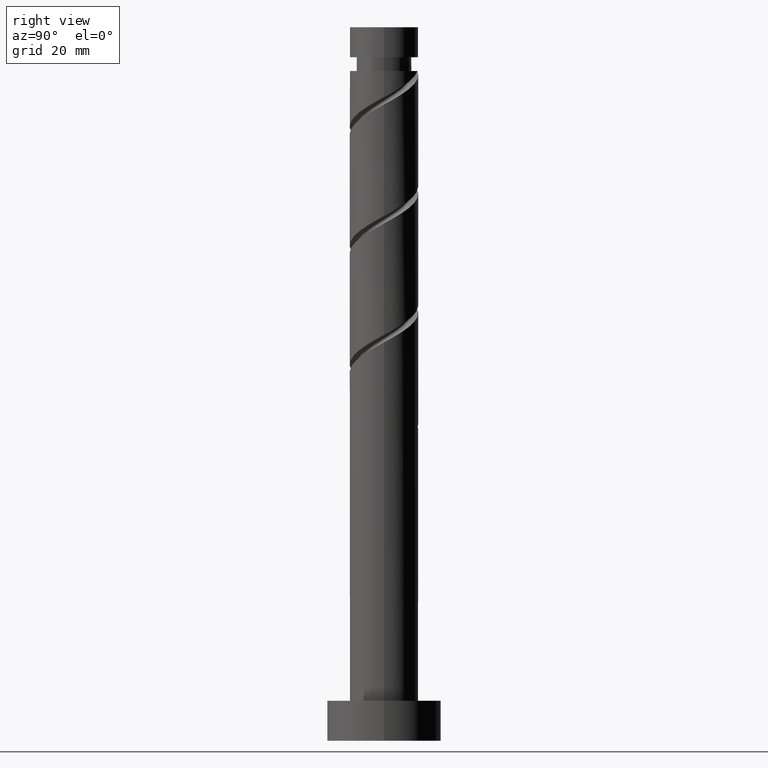
[diagram: clean part render]
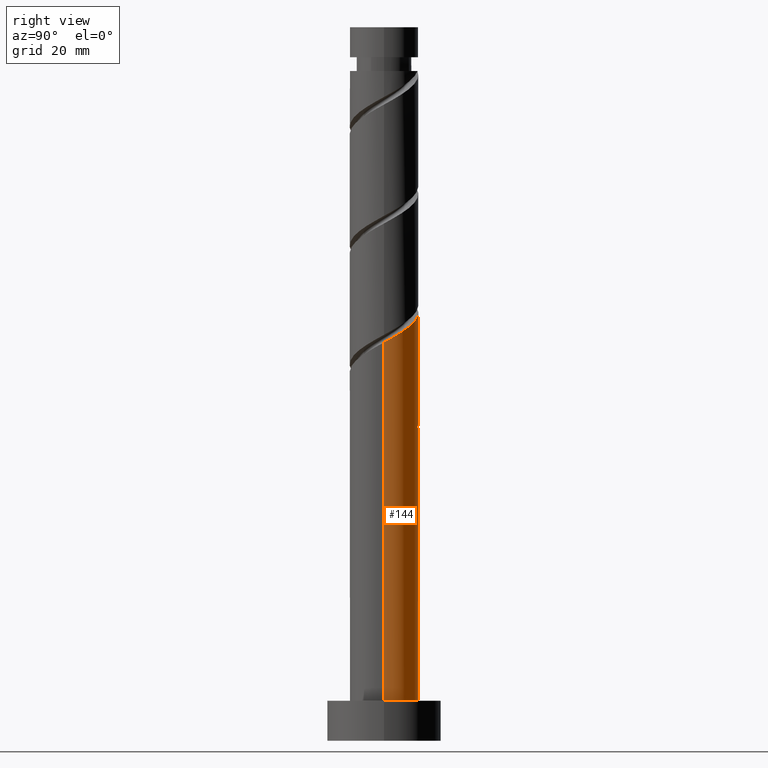
[diagram: same view with one face highlighted and labeled with its STEP entity id]
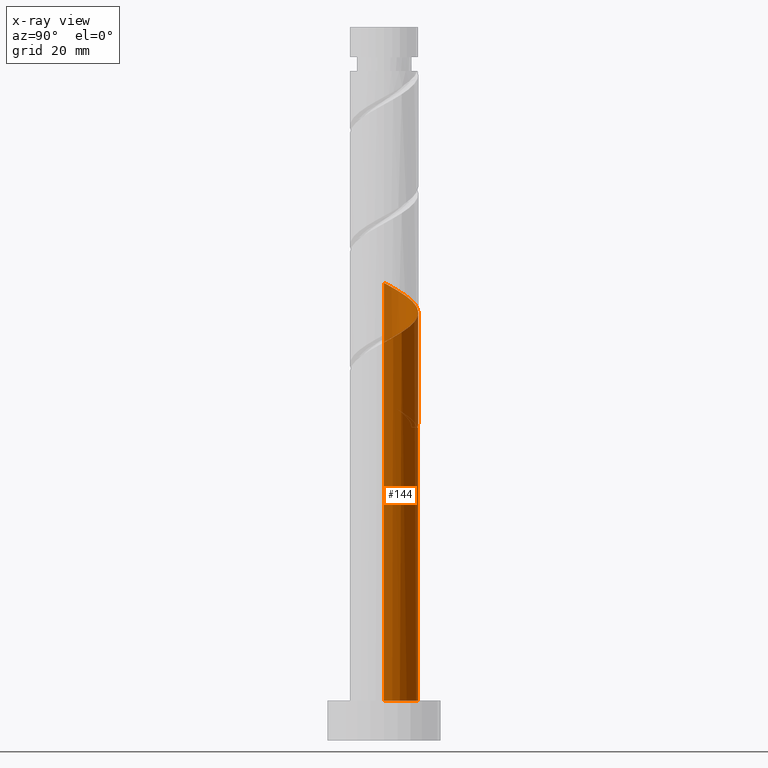
[diagram: x-ray of the same camera — body ghosted, the highlighted face saturated]
A machine part, right view. The second image highlights one B-rep face of the part: STEP entity #144.
The next image is the same camera in x-ray: the body ghosted, the highlighted face saturated — about 0% of this face is hidden behind the body in this view.
In plain terms, the highlighted cylindrical surface (edge-blend (fillet) strip) has radius 6 mm, axis along (-0, -0, -1).
Its self-contained STEP definition (entity closure, byte-faithful):
#8 = ORIENTED_EDGE ( 'NONE', *, *, #1264, .F. ) ;
#21 = VERTEX_POINT ( 'NONE', #1486 ) ;
#39 = ORIENTED_EDGE ( 'NONE', *, *, #79, .F. ) ;
#40 = CARTESIAN_POINT ( 'NONE',  ( -5.853239263016970284, 1.625629983608099627, 58.47782889017771879 ) ) ;
#41 = CARTESIAN_POINT ( 'NONE',  ( -2.490223188509148144, 5.458826657021760731, 56.91532889017774011 ) ) ;
#53 = CARTESIAN_POINT ( 'NONE',  ( -4.422131378450344208, 4.055213196827631705, 77.74866222351106160 ) ) ;
#58 = CARTESIAN_POINT ( 'NONE',  ( 5.690891365972717608, 2.125285433636217913, 70.97782889017773300 ) ) ;
#79 = EDGE_CURVE ( 'NONE', #1132, #964, #1565, .T. ) ;
#87 = CIRCLE ( 'NONE', #500, 6.000000000000000888 ) ;
#104 = AXIS2_PLACEMENT_3D ( 'NONE', #1212, #734, #255 ) ;
#144 = ADVANCED_FACE ( 'NONE', ( #1100 ), #882, .T. ) ;
#155 = CARTESIAN_POINT ( 'NONE',  ( 0.000000000000000000, 0.000000000000000000, 7.000000000000000000 ) ) ;
#161 = VERTEX_POINT ( 'NONE', #600 ) ;
#163 = CARTESIAN_POINT ( 'NONE',  ( 0.2626844154196702474, 6.069108634027293725, 55.35282889017773300 ) ) ;
#235 = EDGE_CURVE ( 'NONE', #161, #392, #87, .T. ) ;
#252 = CARTESIAN_POINT ( 'NONE',  ( -5.458826657021766948, 2.490223188509151253, 57.95699555684441151 ) ) ;
#255 = DIRECTION ( 'NONE',  ( -1.000000000000000000, 0.000000000000000000, 0.000000000000000000 ) ) ;
#288 = CARTESIAN_POINT ( 'NONE',  ( -6.000000000000009770, 0.3418424246785978782, 59.18601535950020320 ) ) ;
#289 = CARTESIAN_POINT ( 'NONE',  ( -5.880000000000002558, 1.193984924527944358, 60.04032889017774011 ) ) ;
#302 = CARTESIAN_POINT ( 'NONE',  ( -1.193984924527943026, 5.880000000000011440, 75.66532889017773300 ) ) ;
#306 = CARTESIAN_POINT ( 'NONE',  ( -5.223250683108880743, 2.952567069755169804, 58.99866222351105449 ) ) ;
#310 = CARTESIAN_POINT ( 'NONE',  ( -6.000000000000009770, -4.827779096192253501E-15, 80.20885978204080402 ) ) ;
#320 = CARTESIAN_POINT ( 'NONE',  ( 3.354816393410203990, 5.064414051026560060, 73.06116222351104739 ) ) ;
#333 = CARTESIAN_POINT ( 'NONE',  ( -2.125285433636219246, 5.690891365972717608, 76.18616222351110423 ) ) ;
#349 = EDGE_CURVE ( 'NONE', #666, #21, #1309, .T. ) ;
#357 = VERTEX_POINT ( 'NONE', #539 ) ;
#387 = DIRECTION ( 'NONE',  ( -0.000000000000000000, -0.000000000000000000, -1.000000000000000000 ) ) ;
#392 = VERTEX_POINT ( 'NONE', #1266 ) ;
#410 = CARTESIAN_POINT ( 'NONE',  ( 1.193984924527945468, 5.880000000000002558, 54.83199555684439730 ) ) ;
#426 = CARTESIAN_POINT ( 'NONE',  ( 4.055213196827632594, 4.422131378450343320, 72.54032889017770458 ) ) ;
#433 = CARTESIAN_POINT ( 'NONE',  ( -2.952567069755172913, 5.223250683108888737, 55.87366222351106870 ) ) ;
#435 = CARTESIAN_POINT ( 'NONE',  ( 6.000000000000011546, 0.6030226891555269253, 70.12649769078201700 ) ) ;
#445 = ORIENTED_EDGE ( 'NONE', *, *, #1323, .F. ) ;
#446 = CARTESIAN_POINT ( 'NONE',  ( -3.779848705874125248, 4.755610000245058977, 56.39449555684439730 ) ) ;
#448 = AXIS2_PLACEMENT_3D ( 'NONE', #865, #760, #971 ) ;
#500 = AXIS2_PLACEMENT_3D ( 'NONE', #155, #556, #1168 ) ;
#511 = CARTESIAN_POINT ( 'NONE',  ( 6.000000000000000888, 7.347880794884120722E-16, 125.0000000000000000 ) ) ;
#529 = CARTESIAN_POINT ( 'NONE',  ( -1.625629983608096296, 5.853239263016961402, 56.39449555684439730 ) ) ;
#537 = DIRECTION ( 'NONE',  ( -0.000000000000000000, -0.000000000000000000, -1.000000000000000000 ) ) ;
#539 = CARTESIAN_POINT ( 'NONE',  ( -1.193984924527943248, 5.880000000000011440, 54.83199555684439730 ) ) ;
#545 = CARTESIAN_POINT ( 'NONE',  ( -5.853239263016970284, 1.625629983608099627, 79.31116222351106160 ) ) ;
#556 = DIRECTION ( 'NONE',  ( 0.000000000000000000, 0.000000000000000000, 1.000000000000000000 ) ) ;
#567 = CARTESIAN_POINT ( 'NONE',  ( 6.000000000000009770, 4.018151545899142617E-15, 69.79219311537414683 ) ) ;
#599 = CARTESIAN_POINT ( 'NONE',  ( -6.000000000000003553, 6.447034196778516291E-15, 60.70513133164799768 ) ) ;
#600 = CARTESIAN_POINT ( 'NONE',  ( 6.000000000000000888, 7.347880794884120722E-16, 7.000000000000000000 ) ) ;
#665 = CARTESIAN_POINT ( 'NONE',  ( -6.000000000000000888, 0.000000000000000000, 125.0000000000000000 ) ) ;
#666 = VERTEX_POINT ( 'NONE', #599 ) ;
#671 = EDGE_CURVE ( 'NONE', #357, #21, #1501, .T. ) ;
#680 = CARTESIAN_POINT ( 'NONE',  ( -5.064414051026561836, 3.354816393410203990, 78.26949555684440440 ) ) ;
#695 = CARTESIAN_POINT ( 'NONE',  ( 1.625629983608100515, 5.853239263016972060, 74.10282889017774721 ) ) ;
#734 = DIRECTION ( 'NONE',  ( -0.000000000000000000, -0.000000000000000000, -1.000000000000000000 ) ) ;
#740 = ORIENTED_EDGE ( 'NONE', *, *, #954, .T. ) ;
#760 = DIRECTION ( 'NONE',  ( 0.000000000000000000, -0.000000000000000000, -1.000000000000000000 ) ) ;
#773 = LINE ( 'NONE', #1488, #1103 ) ;
#792 = CARTESIAN_POINT ( 'NONE',  ( -3.354816393410198216, 5.064414051026555619, 57.43616222351105449 ) ) ;
#800 = CARTESIAN_POINT ( 'NONE',  ( -6.000000000000009770, -4.827779096192253501E-15, 80.20885978204080402 ) ) ;
#817 = EDGE_LOOP ( 'NONE', ( #39, #740, #843, #8, #1423, #970, #1091, #445 ) ) ;
#821 = CARTESIAN_POINT ( 'NONE',  ( -2.952567069755172913, 5.223250683108888737, 76.70699555684440440 ) ) ;
#828 = CARTESIAN_POINT ( 'NONE',  ( -1.193984924527943248, 5.880000000000011440, 54.83199555684439730 ) ) ;
#839 = CARTESIAN_POINT ( 'NONE',  ( -3.779848705874125248, 4.755610000245058977, 77.22782889017771879 ) ) ;
#843 = ORIENTED_EDGE ( 'NONE', *, *, #235, .T. ) ;
#865 = CARTESIAN_POINT ( 'NONE',  ( 0.000000000000000000, 0.000000000000000000, 54.83199555684439730 ) ) ;
#882 = CYLINDRICAL_SURFACE ( 'NONE', #104, 6.000000000000000888 ) ;
#919 = CARTESIAN_POINT ( 'NONE',  ( -4.755610000245051872, 3.779848705874121251, 58.47782889017774011 ) ) ;
#946 = CARTESIAN_POINT ( 'NONE',  ( 6.000000000000009770, 4.018151545899142617E-15, 69.79219311537414683 ) ) ;
#952 = CARTESIAN_POINT ( 'NONE',  ( -5.458826657021766948, 2.490223188509151253, 78.79032889017773300 ) ) ;
#954 = EDGE_CURVE ( 'NONE', #1132, #161, #1287, .T. ) ;
#964 = VERTEX_POINT ( 'NONE', #800 ) ;
#970 = ORIENTED_EDGE ( 'NONE', *, *, #671, .T. ) ;
#971 = DIRECTION ( 'NONE',  ( -1.000000000000000000, 0.000000000000000000, 0.000000000000000000 ) ) ;
#1017 = DIRECTION ( 'NONE',  ( -0.000000000000000000, -0.000000000000000000, -1.000000000000000000 ) ) ;
#1043 = CARTESIAN_POINT ( 'NONE',  ( -6.000000000000009770, -4.827779096192253501E-15, 59.37552644870746832 ) ) ;
#1044 = CARTESIAN_POINT ( 'NONE',  ( -6.000000000000001776, 0.6030226891555305890, 60.37082675624015593 ) ) ;
#1047 = CARTESIAN_POINT ( 'NONE',  ( -5.961173948522136889, 0.6814727840942154113, 79.83199555684440440 ) ) ;
#1050 = CARTESIAN_POINT ( 'NONE',  ( -6.000000000000003553, 6.447034196778516291E-15, 60.70513133164799768 ) ) ;
#1054 = CARTESIAN_POINT ( 'NONE',  ( 5.880000000000011440, 1.193984924527943470, 70.45699555684441862 ) ) ;
#1059 = EDGE_CURVE ( 'NONE', #357, #1365, #1193, .T. ) ;
#1062 = VECTOR ( 'NONE', #1017, 1000.000000000000000 ) ;
#1072 = CARTESIAN_POINT ( 'NONE',  ( -2.125285433636219246, 5.690891365972717608, 55.35282889017773300 ) ) ;
#1091 = ORIENTED_EDGE ( 'NONE', *, *, #349, .F. ) ;
#1100 = FACE_OUTER_BOUND ( 'NONE', #817, .T. ) ;
#1103 = VECTOR ( 'NONE', #387, 1000.000000000000000 ) ;
#1132 = VERTEX_POINT ( 'NONE', #946 ) ;
#1165 = CARTESIAN_POINT ( 'NONE',  ( -0.2626844154196680270, 6.069108634027301719, 75.14449555684439019 ) ) ;
#1168 = DIRECTION ( 'NONE',  ( 1.000000000000000000, 0.000000000000000000, 0.000000000000000000 ) ) ;
#1185 = CARTESIAN_POINT ( 'NONE',  ( -5.064414051026561836, 3.354816393410203990, 57.43616222351105449 ) ) ;
#1193 =( BOUNDED_CURVE ( )  B_SPLINE_CURVE ( 2, ( #828, #1072, #433, #446, #1429, #1185, #252, #40, #1386, #288, #1273 ),
 .UNSPECIFIED., .F., .T. ) 
 B_SPLINE_CURVE_WITH_KNOTS ( ( 3, 2, 2, 2, 2, 3 ),
 ( 0.000000000000000000, 0.01249999999999995559, 0.02500000000000002220, 0.03749999999999997780, 0.05000000000000004441, 0.05453220231385522837 ),
 .UNSPECIFIED. ) 
 CURVE ( )  GEOMETRIC_REPRESENTATION_ITEM ( )  RATIONAL_B_SPLINE_CURVE ( ( 0.9090909090909156109, 0.8978984914501316750, 0.9090909090909156109, 0.8978984914501316750, 0.9090909090909156109, 0.8978984914501316750, 0.9090909090909156109, 0.8978984914501316750, 0.9090909090909156109, 0.9050328050005801428, 0.9039174447099380671 ) ) 
 REPRESENTATION_ITEM ( '' )  );
#1212 = CARTESIAN_POINT ( 'NONE',  ( 0.000000000000000000, 0.000000000000000000, 125.0000000000000000 ) ) ;
#1264 = EDGE_CURVE ( 'NONE', #1365, #392, #773, .T. ) ;
#1265 = LINE ( 'NONE', #665, #1321 ) ;
#1266 = CARTESIAN_POINT ( 'NONE',  ( -6.000000000000000888, 0.000000000000000000, 7.000000000000000000 ) ) ;
#1273 = CARTESIAN_POINT ( 'NONE',  ( -6.000000000000009770, -4.827779096192253501E-15, 59.37552644870746832 ) ) ;
#1274 = CARTESIAN_POINT ( 'NONE',  ( -5.690891365972707838, 2.125285433636217913, 59.51949555684441151 ) ) ;
#1287 = LINE ( 'NONE', #511, #1062 ) ;
#1288 = CARTESIAN_POINT ( 'NONE',  ( -0.6814727840942131909, 5.961173948522127120, 55.87366222351108291 ) ) ;
#1309 =( BOUNDED_CURVE ( )  B_SPLINE_CURVE ( 2, ( #1050, #1044, #289, #1274, #306, #919, #1395, #792, #41, #529, #1288, #163, #410 ),
 .UNSPECIFIED., .F., .T. ) 
 B_SPLINE_CURVE_WITH_KNOTS ( ( 3, 2, 2, 2, 2, 2, 3 ),
 ( 0.9295322023138552492, 0.9375000000000000000, 0.9499999999999999556, 0.9625000000000000222, 0.9749999999999999778, 0.9875000000000000444, 1.000000000000000000 ),
 .UNSPECIFIED. ) 
 CURVE ( )  GEOMETRIC_REPRESENTATION_ITEM ( )  RATIONAL_B_SPLINE_CURVE ( ( 0.9039174447099321830, 0.9019565955404615920, 0.9090909090909099488, 0.8978984914501261239, 0.9090909090909099488, 0.8978984914501261239, 0.9090909090909099488, 0.8978984914501261239, 0.9090909090909099488, 0.8978984914501261239, 0.9090909090909099488, 0.8978984914501261239, 0.9090909090909099488 ) ) 
 REPRESENTATION_ITEM ( '' )  );
#1321 = VECTOR ( 'NONE', #537, 1000.000000000000000 ) ;
#1323 = EDGE_CURVE ( 'NONE', #964, #666, #1265, .T. ) ;
#1365 = VERTEX_POINT ( 'NONE', #1043 ) ;
#1386 = CARTESIAN_POINT ( 'NONE',  ( -5.961173948522136889, 0.6814727840942154113, 58.99866222351106870 ) ) ;
#1395 = CARTESIAN_POINT ( 'NONE',  ( -4.055213196827625488, 4.422131378450338879, 57.95699555684440440 ) ) ;
#1398 = CARTESIAN_POINT ( 'NONE',  ( 2.490223188509153474, 5.458826657021765172, 73.58199555684441862 ) ) ;
#1406 = CARTESIAN_POINT ( 'NONE',  ( -6.000000000000008882, 0.3418424246785962684, 80.01934869283351759 ) ) ;
#1423 = ORIENTED_EDGE ( 'NONE', *, *, #1059, .F. ) ;
#1429 = CARTESIAN_POINT ( 'NONE',  ( -4.422131378450344208, 4.055213196827631705, 56.91532889017773300 ) ) ;
#1486 = CARTESIAN_POINT ( 'NONE',  ( 1.193984924527945468, 5.880000000000002558, 54.83199555684439730 ) ) ;
#1488 = CARTESIAN_POINT ( 'NONE',  ( -6.000000000000000888, 0.000000000000000000, 125.0000000000000000 ) ) ;
#1501 = CIRCLE ( 'NONE', #448, 6.000000000000000888 ) ;
#1523 = CARTESIAN_POINT ( 'NONE',  ( 4.755610000245060753, 3.779848705874125248, 72.01949555684437598 ) ) ;
#1537 = CARTESIAN_POINT ( 'NONE',  ( 0.6814727840942165216, 5.961173948522136889, 74.62366222351107581 ) ) ;
#1542 = CARTESIAN_POINT ( 'NONE',  ( 5.223250683108889625, 2.952567069755172469, 71.49866222351107581 ) ) ;
#1565 =( BOUNDED_CURVE ( )  B_SPLINE_CURVE ( 2, ( #567, #435, #1054, #58, #1542, #1523, #426, #320, #1398, #695, #1537, #1165, #302, #333, #821, #839, #53, #680, #952, #545, #1047, #1406, #310 ),
 .UNSPECIFIED., .F., .T. ) 
 B_SPLINE_CURVE_WITH_KNOTS ( ( 3, 2, 2, 2, 2, 2, 2, 2, 2, 2, 2, 3 ),
 ( 0.1795322023138552214, 0.1875000000000000000, 0.1999999999999999556, 0.2125000000000000222, 0.2249999999999999778, 0.2375000000000000444, 0.2500000000000000000, 0.2624999999999999556, 0.2750000000000000222, 0.2874999999999999778, 0.3000000000000000444, 0.3045322023138552492 ),
 .UNSPECIFIED. ) 
 CURVE ( )  GEOMETRIC_REPRESENTATION_ITEM ( )  RATIONAL_B_SPLINE_CURVE ( ( 0.9039174447099378451, 0.9019565955404671431, 0.9090909090909156109, 0.8978984914501316750, 0.9090909090909156109, 0.8978984914501316750, 0.9090909090909156109, 0.8978984914501316750, 0.9090909090909156109, 0.8978984914501316750, 0.9090909090909156109, 0.8978984914501316750, 0.9090909090909156109, 0.8978984914501316750, 0.9090909090909156109, 0.8978984914501316750, 0.9090909090909156109, 0.8978984914501316750, 0.9090909090909156109, 0.8978984914501316750, 0.9090909090909156109, 0.9050328050005800318, 0.9039174447099378451 ) ) 
 REPRESENTATION_ITEM ( '' )  );